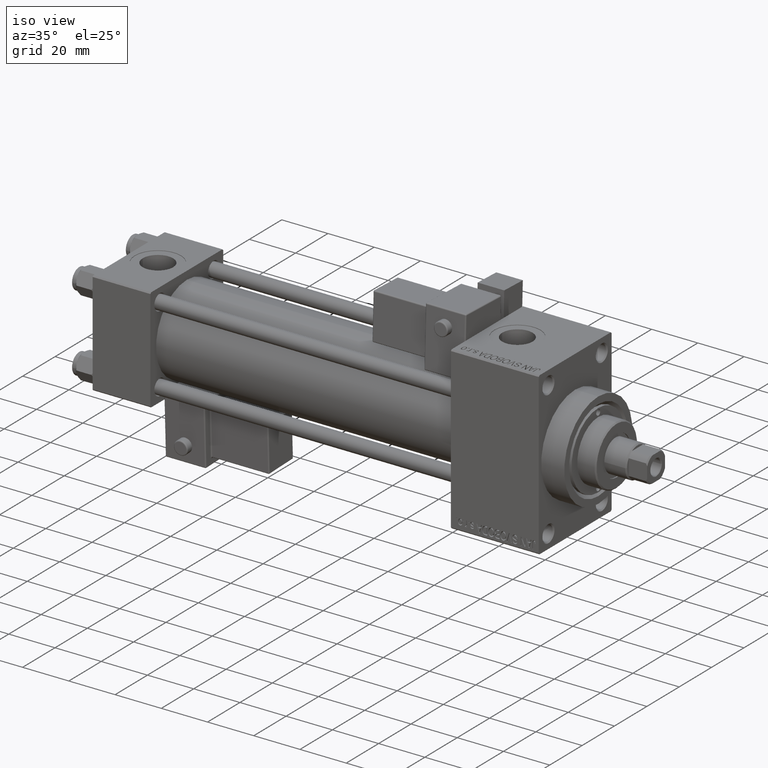
[diagram: clean part render]
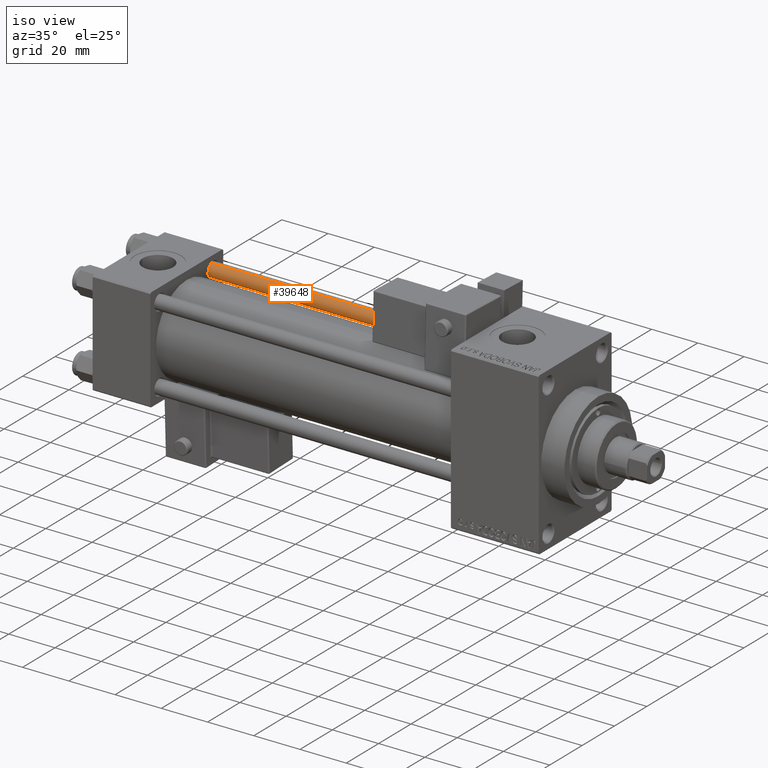
[diagram: same view with one face highlighted and labeled with its STEP entity id]
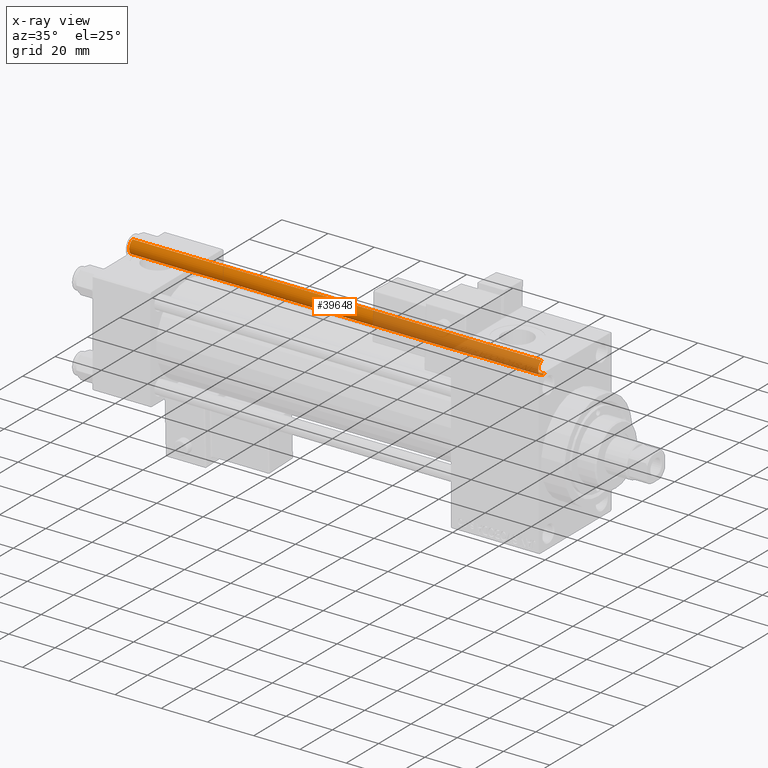
[diagram: x-ray of the same camera — body ghosted, the highlighted face saturated]
A machine part, iso view. The second image highlights one B-rep face of the part: STEP entity #39648.
The next image is the same camera in x-ray: the body ghosted, the highlighted face saturated — about 41% of this face is hidden behind the body in this view.
In plain terms, the highlighted cylindrical surface (edge-blend (fillet) strip) has radius 3 mm, axis along (-1, -0, 0).
Its self-contained STEP definition (entity closure, byte-faithful):
#3603 = VERTEX_POINT ( 'NONE', #45445 ) ;
#4971 = DIRECTION ( 'NONE',  ( 1.000000000000000000, 0.000000000000000000, 0.000000000000000000 ) ) ;
#9723 = DIRECTION ( 'NONE',  ( 1.000000000000000000, 0.000000000000000000, 0.000000000000000000 ) ) ;
#10226 = CIRCLE ( 'NONE', #28666, 3.000000000000000444 ) ;
#10696 = CARTESIAN_POINT ( 'NONE',  ( 3.000000000000000444, 3.673940397442060361E-16, 178.0000000000000000 ) ) ;
#10916 = CARTESIAN_POINT ( 'NONE',  ( 3.000000000000000444, 3.673940397442060361E-16, 0.5000000000000281997 ) ) ;
#11294 = VERTEX_POINT ( 'NONE', #37070 ) ;
#13483 = CARTESIAN_POINT ( 'NONE',  ( 0.000000000000000000, 0.000000000000000000, 0.5000000000000281997 ) ) ;
#13535 = CARTESIAN_POINT ( 'NONE',  ( 0.000000000000000000, 0.000000000000000000, 178.0000000000000000 ) ) ;
#15927 = ORIENTED_EDGE ( 'NONE', *, *, #30785, .T. ) ;
#16007 = CARTESIAN_POINT ( 'NONE',  ( -3.000000000000000444, 0.000000000000000000, 178.0000000000000000 ) ) ;
#16248 = LINE ( 'NONE', #16007, #46599 ) ;
#16305 = FACE_OUTER_BOUND ( 'NONE', #31354, .T. ) ;
#17739 = ORIENTED_EDGE ( 'NONE', *, *, #27516, .F. ) ;
#20537 = CARTESIAN_POINT ( 'NONE',  ( 0.000000000000000000, 0.000000000000000000, 177.5000000000000000 ) ) ;
#25782 = ORIENTED_EDGE ( 'NONE', *, *, #45220, .T. ) ;
#25870 = AXIS2_PLACEMENT_3D ( 'NONE', #20537, #40111, #4971 ) ;
#27325 = DIRECTION ( 'NONE',  ( -0.000000000000000000, -0.000000000000000000, -1.000000000000000000 ) ) ;
#27516 = EDGE_CURVE ( 'NONE', #3603, #31983, #33792, .T. ) ;
#27801 = DIRECTION ( 'NONE',  ( -0.000000000000000000, -0.000000000000000000, 1.000000000000000000 ) ) ;
#28666 = AXIS2_PLACEMENT_3D ( 'NONE', #13483, #27801, #9723 ) ;
#28805 = CARTESIAN_POINT ( 'NONE',  ( -3.000000000000000444, 0.000000000000000000, 177.5000000000000000 ) ) ;
#30767 = VERTEX_POINT ( 'NONE', #28805 ) ;
#30785 = EDGE_CURVE ( 'NONE', #11294, #31983, #10226, .T. ) ;
#31354 = EDGE_LOOP ( 'NONE', ( #17739, #40498, #25782, #15927 ) ) ;
#31983 = VERTEX_POINT ( 'NONE', #10916 ) ;
#33792 = LINE ( 'NONE', #10696, #45923 ) ;
#37070 = CARTESIAN_POINT ( 'NONE',  ( -3.000000000000000444, 0.000000000000000000, 0.5000000000000281997 ) ) ;
#37309 = DIRECTION ( 'NONE',  ( -0.000000000000000000, -0.000000000000000000, -1.000000000000000000 ) ) ;
#39648 = ADVANCED_FACE ( 'NONE', ( #16305 ), #47899, .T. ) ;
#40111 = DIRECTION ( 'NONE',  ( 0.000000000000000000, 0.000000000000000000, -1.000000000000000000 ) ) ;
#40498 = ORIENTED_EDGE ( 'NONE', *, *, #48552, .T. ) ;
#44141 = DIRECTION ( 'NONE',  ( -0.000000000000000000, -0.000000000000000000, -1.000000000000000000 ) ) ;
#45220 = EDGE_CURVE ( 'NONE', #30767, #11294, #16248, .T. ) ;
#45445 = CARTESIAN_POINT ( 'NONE',  ( 3.000000000000000444, 3.673940397442060361E-16, 177.5000000000000000 ) ) ;
#45681 = AXIS2_PLACEMENT_3D ( 'NONE', #13535, #44141, #46913 ) ;
#45923 = VECTOR ( 'NONE', #37309, 1000.000000000000000 ) ;
#46599 = VECTOR ( 'NONE', #27325, 1000.000000000000000 ) ;
#46913 = DIRECTION ( 'NONE',  ( -1.000000000000000000, 0.000000000000000000, 0.000000000000000000 ) ) ;
#47899 = CYLINDRICAL_SURFACE ( 'NONE', #45681, 3.000000000000000444 ) ;
#48552 = EDGE_CURVE ( 'NONE', #3603, #30767, #49105, .T. ) ;
#49105 = CIRCLE ( 'NONE', #25870, 3.000000000000000444 ) ;